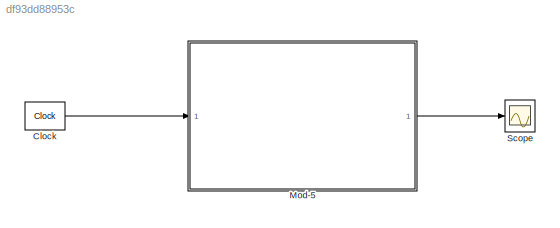
MODEL slx_df93dd88953c
KIND model
CONFIG AbsTol = auto
CONFIG EnableMultiTasking = off
CONFIG FixedStep = auto
CONFIG MaxStep = auto
CONFIG MinStep = auto
CONFIG RelTol = 1e-3
CONFIG SampleTimeConstraint = Unconstrained
CONFIG SolverName = VariableStepAuto
CONFIG StartTime = 0.0
CONFIG StopTime = 10.0
BLOCK [Reference] Clock  REF=simulink_extras/Flip Flops/Clock
  Ports = [0, 1]
  SourceBlock = simulink_extras/Flip Flops/Clock
  SourceProductBaseCode = SL
  SourceType = Digital clock
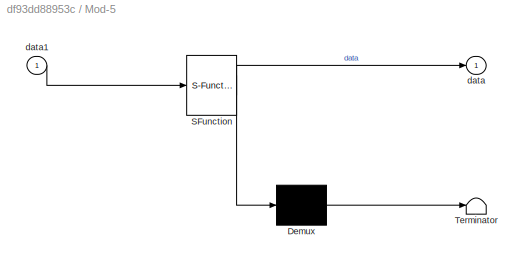
BLOCK [SubSystem] Mod-5
  ErrorFcn = Stateflow.Translate.translate
  PermitHierarchicalResolution = ExplicitOnly
  Ports = [1, 1]
  RequestExecContextInheritance = off
  SFBlockType = Chart
  TreatAsAtomicUnit = on
BLOCK [Demux] Mod-5/ Demux 
  Outputs = 1
  Ports = [1, 1]
BLOCK [S-Function] Mod-5/ SFunction 
  EnableBusSupport = on
  FunctionName = sf_sfun
  PortCounts = [1 2]
  Ports = [1, 2]
  SFcnIsStateOwnerBlock = off
  SFunctionDeploymentMode = off
  Tag = Stateflow S-Function 3
BLOCK [Terminator] Mod-5/ Terminator 
BLOCK [Outport] Mod-5/data
BLOCK [Inport] Mod-5/data1
BLOCK [Scope] Scope
  Floating = off
  NumInputPorts = 1
  Ports = [1]
  ScopeSpecificationString = Simulink.scopes.TimeScopeBlockCfg('CurrentConfiguration', extmgr.ConfigurationSet(extmgr.Configuration('Core','General UI',true),extmgr.Configuration('Core','Source UI',true),extmgr.Configuration('Sources','WiredSimulink',true),extmgr.Configuration('Visuals','Time Domain',true),extmgr.Configuration('Tools','Plot Navigation',true),extmgr.Configuration('Tools','Measurements',true)),'Version','2020b'...<+1ch>
LINE Clock:1 -> Mod-5:1
LINE Mod-5:1 -> Scope:1
CHART Mod-5 states=5 transitions=6
  STATE_LABEL 'state \n[000]\nentry:\ns=0;\nduring:\ns=s+1;\nexit:\ns=1;'
  STATE_LABEL 'state1 \n[001]\nentry:\ns=1;\nduring:\ns=s+1;\nexit:\ns=2;'
  STATE_LABEL 'state2 \n[010]\nentry:\ns=2;\nduring:\ns=s+1;\nexit:\ns=3;'
  STATE_LABEL 'state4 \n[100]\nentry:\ns=4;\nduring:\ns=s+1;\nexit:\ns=5;'
  STATE_LABEL 'state3 \n[011]\nentry:\ns=3;\nduring:\ns=s+1;\nexit:\ns=4;'
CHART  states=0 transitions=0
